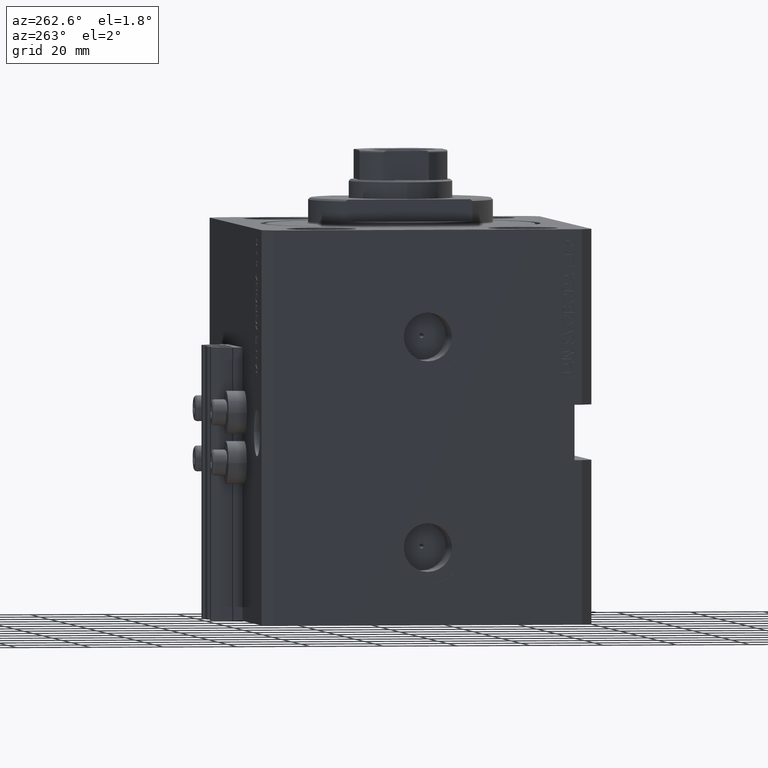
[diagram: clean part render]
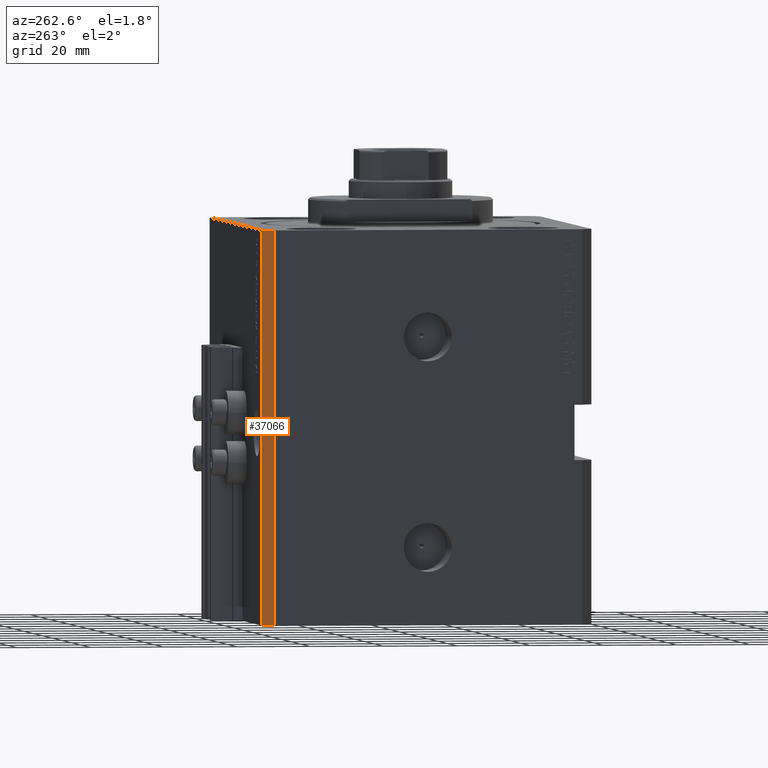
[diagram: same view with one face highlighted and labeled with its STEP entity id]
A machine part, auxiliary view. The second image highlights one B-rep face of the part: STEP entity #37066.
In plain terms, the highlighted planar face has unit normal (-0.7071, 0.7071, 0).
Its self-contained STEP definition (entity closure, byte-faithful):
#113 = CARTESIAN_POINT ( 'NONE',  ( -54.49999999999999289, 45.00000000000000000, -107.0000000000000000 ) ) ;
#4148 = LINE ( 'NONE', #8859, #39136 ) ;
#5896 = CARTESIAN_POINT ( 'NONE',  ( -57.49999999999998579, 42.00000000000000711, -107.0000000000000000 ) ) ;
#8744 = DIRECTION ( 'NONE',  ( 0.000000000000000000, 0.000000000000000000, 1.000000000000000000 ) ) ;
#8859 = CARTESIAN_POINT ( 'NONE',  ( -54.49999999999999289, 45.00000000000000000, 0.000000000000000000 ) ) ;
#12261 = ORIENTED_EDGE ( 'NONE', *, *, #27940, .T. ) ;
#13268 = DIRECTION ( 'NONE',  ( -0.7071067811865483499, -0.7071067811865466846, 0.000000000000000000 ) ) ;
#13982 = CARTESIAN_POINT ( 'NONE',  ( -57.49999999999998579, 42.00000000000000711, -107.0000000000000000 ) ) ;
#16380 = CARTESIAN_POINT ( 'NONE',  ( -57.49999999999998579, 42.00000000000000711, 0.000000000000000000 ) ) ;
#16841 = VERTEX_POINT ( 'NONE', #47419 ) ;
#17063 = VERTEX_POINT ( 'NONE', #16380 ) ;
#17350 = ORIENTED_EDGE ( 'NONE', *, *, #45346, .F. ) ;
#18817 = PLANE ( 'NONE',  #24119 ) ;
#19837 = VERTEX_POINT ( 'NONE', #113 ) ;
#20535 = VECTOR ( 'NONE', #36598, 1000.000000000000000 ) ;
#21168 = LINE ( 'NONE', #36325, #47421 ) ;
#21460 = LINE ( 'NONE', #36622, #35455 ) ;
#22519 = ORIENTED_EDGE ( 'NONE', *, *, #31975, .F. ) ;
#24119 = AXIS2_PLACEMENT_3D ( 'NONE', #29485, #33971, #41177 ) ;
#27043 = DIRECTION ( 'NONE',  ( -0.7071067811865483499, -0.7071067811865466846, 0.000000000000000000 ) ) ;
#27940 = EDGE_CURVE ( 'NONE', #19837, #35624, #21460, .T. ) ;
#29160 = EDGE_CURVE ( 'NONE', #35624, #17063, #29381, .T. ) ;
#29381 = LINE ( 'NONE', #13982, #20535 ) ;
#29485 = CARTESIAN_POINT ( 'NONE',  ( -54.49999999999999289, 45.00000000000000000, -107.0000000000000000 ) ) ;
#31975 = EDGE_CURVE ( 'NONE', #16841, #17063, #4148, .T. ) ;
#33971 = DIRECTION ( 'NONE',  ( -0.7071067811865466846, 0.7071067811865483499, 0.000000000000000000 ) ) ;
#35455 = VECTOR ( 'NONE', #13268, 1000.000000000000000 ) ;
#35624 = VERTEX_POINT ( 'NONE', #5896 ) ;
#36219 = EDGE_LOOP ( 'NONE', ( #22519, #17350, #12261, #36448 ) ) ;
#36325 = CARTESIAN_POINT ( 'NONE',  ( -54.49999999999999289, 45.00000000000000000, -107.0000000000000000 ) ) ;
#36448 = ORIENTED_EDGE ( 'NONE', *, *, #29160, .T. ) ;
#36598 = DIRECTION ( 'NONE',  ( 0.000000000000000000, 0.000000000000000000, 1.000000000000000000 ) ) ;
#36622 = CARTESIAN_POINT ( 'NONE',  ( -54.49999999999999289, 45.00000000000000000, -107.0000000000000000 ) ) ;
#37066 = ADVANCED_FACE ( 'NONE', ( #48882 ), #18817, .T. ) ;
#39136 = VECTOR ( 'NONE', #27043, 1000.000000000000000 ) ;
#41177 = DIRECTION ( 'NONE',  ( -0.7071067811865483499, -0.7071067811865466846, 0.000000000000000000 ) ) ;
#45346 = EDGE_CURVE ( 'NONE', #19837, #16841, #21168, .T. ) ;
#47419 = CARTESIAN_POINT ( 'NONE',  ( -54.49999999999999289, 45.00000000000000000, 0.000000000000000000 ) ) ;
#47421 = VECTOR ( 'NONE', #8744, 1000.000000000000000 ) ;
#48882 = FACE_OUTER_BOUND ( 'NONE', #36219, .T. ) ;